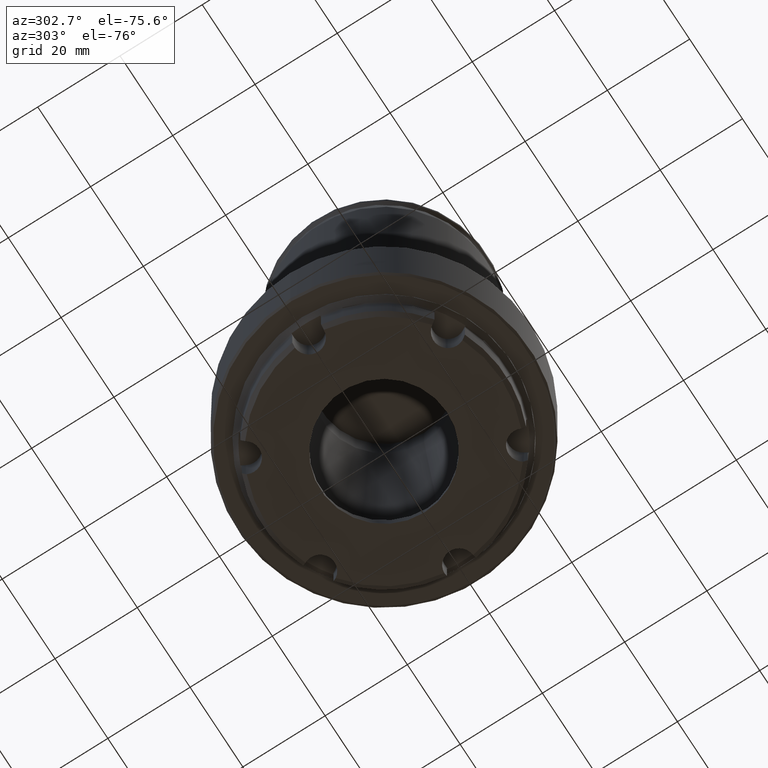
[diagram: clean part render]
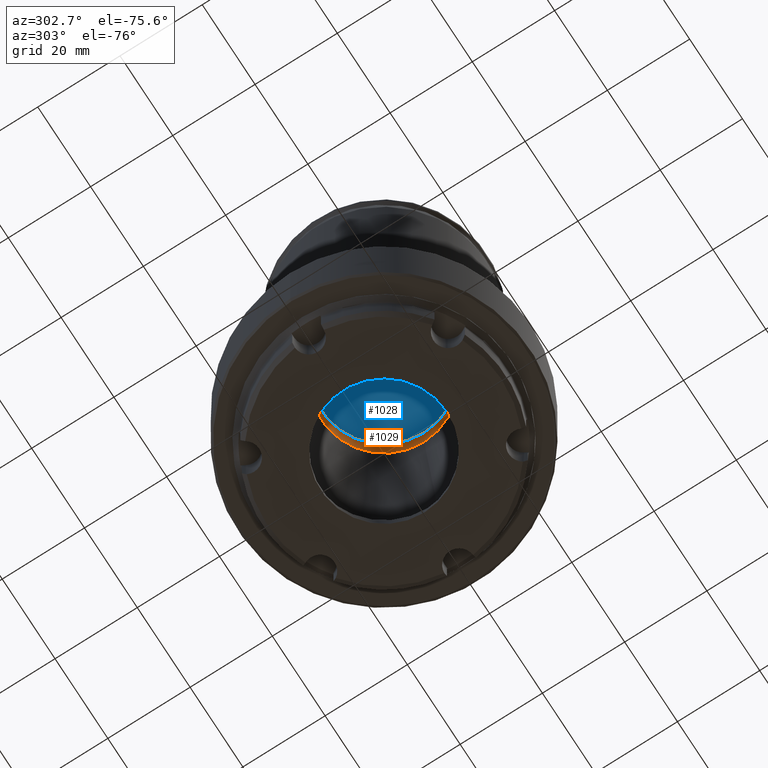
[diagram: same view with the hole feature highlighted: cylindrical wall and planar end face, labeled with their STEP entity ids]
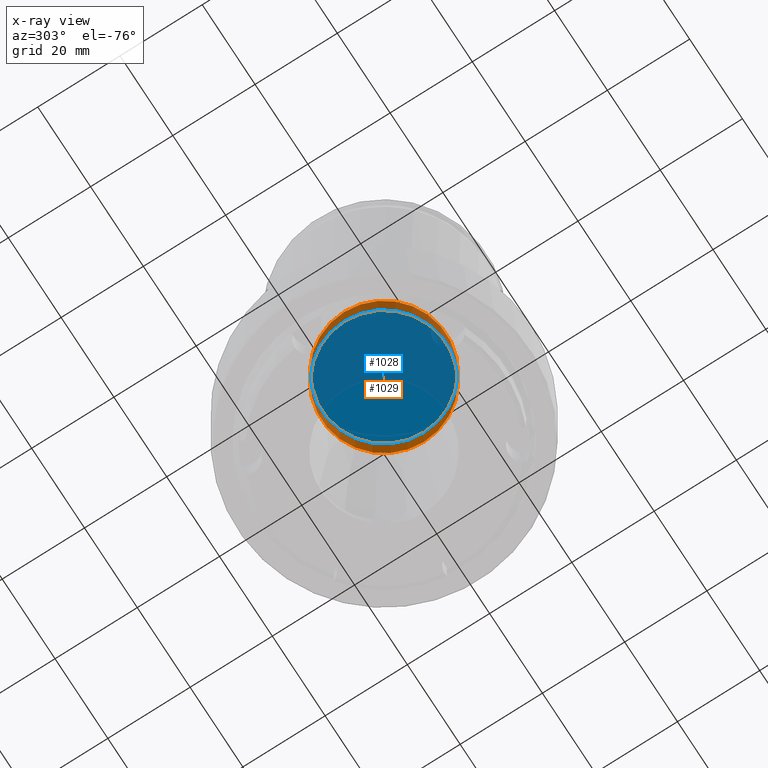
[diagram: x-ray of the same camera — body ghosted, the hole faces saturated]
A machine part, auxiliary view. The highlighted faces form one hole feature of diameter 30.3 mm: the cylindrical wall (entity #1029, orange) and its adjacent planar end face (entity #1028, blue) — they share a circular edge in the B-rep.
The next image is the same camera in x-ray (body ghosted, the hole faces saturated) — the bore reads through the body.
Wall:
#44=CYLINDRICAL_SURFACE('',#1165,15.15);
#468=ORIENTED_EDGE('',*,*,#620,.F.);
#469=ORIENTED_EDGE('',*,*,#619,.T.);
#619=EDGE_CURVE('',#717,#717,#778,.T.);
#620=EDGE_CURVE('',#718,#718,#779,.T.);
#717=VERTEX_POINT('',#1894);
#718=VERTEX_POINT('',#1897);
#778=CIRCLE('',#1164,15.15);
#779=CIRCLE('',#1166,15.15);
#853=EDGE_LOOP('',(#468));
#854=EDGE_LOOP('',(#469));
#933=FACE_BOUND('',#853,.T.);
#934=FACE_BOUND('',#854,.T.);
#1029=ADVANCED_FACE('',(#933,#934),#44,.F.);
#1164=AXIS2_PLACEMENT_3D('',#1893,#1452,#1453);
#1165=AXIS2_PLACEMENT_3D('',#1895,#1454,#1455);
#1166=AXIS2_PLACEMENT_3D('',#1896,#1456,#1457);
#1452=DIRECTION('',(0.,0.,1.));
#1453=DIRECTION('',(1.,0.,0.));
#1454=DIRECTION('',(0.,0.,1.));
#1455=DIRECTION('',(1.,0.,0.));
#1456=DIRECTION('',(0.,0.,1.));
#1457=DIRECTION('',(1.,0.,0.));
#1893=CARTESIAN_POINT('',(0.,0.,34.));
#1894=CARTESIAN_POINT('',(15.15,0.,34.));
#1895=CARTESIAN_POINT('',(0.,0.,-33.4919347833799));
#1896=CARTESIAN_POINT('',(0.,0.,26.480180020967));
#1897=CARTESIAN_POINT('',(15.15,0.,26.480180020967));
End face:
#467=ORIENTED_EDGE('',*,*,#619,.F.);
#619=EDGE_CURVE('',#717,#717,#778,.T.);
#717=VERTEX_POINT('',#1894);
#778=CIRCLE('',#1164,15.15);
#852=EDGE_LOOP('',(#467));
#932=FACE_BOUND('',#852,.T.);
#967=PLANE('',#1163);
#1028=ADVANCED_FACE('',(#932),#967,.F.);
#1163=AXIS2_PLACEMENT_3D('',#1892,#1450,#1451);
#1164=AXIS2_PLACEMENT_3D('',#1893,#1452,#1453);
#1450=DIRECTION('',(0.,0.,1.));
#1451=DIRECTION('',(1.,0.,0.));
#1452=DIRECTION('',(0.,0.,1.));
#1453=DIRECTION('',(1.,0.,0.));
#1892=CARTESIAN_POINT('',(0.,0.,34.));
#1893=CARTESIAN_POINT('',(0.,0.,34.));
#1894=CARTESIAN_POINT('',(15.15,0.,34.));